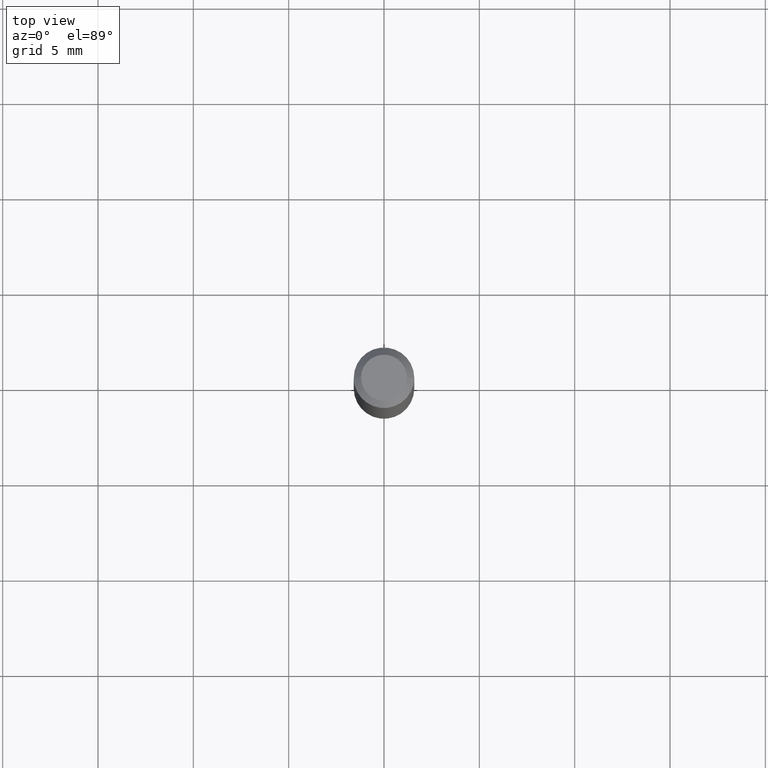
[diagram: clean part render]
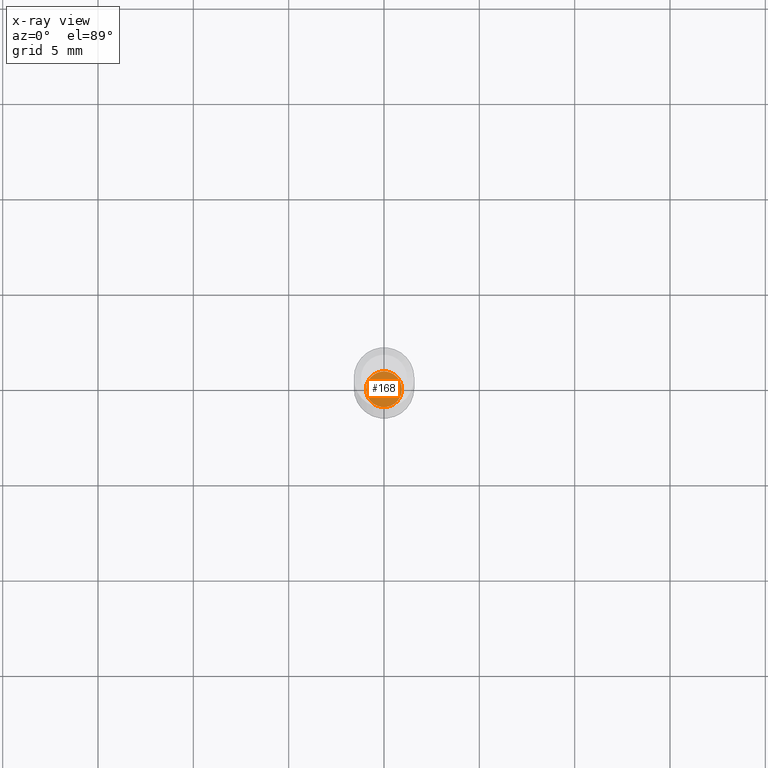
[diagram: x-ray — body ghosted, one internal face saturated and labeled with its STEP entity id]
A machine part, top view, then the same camera in x-ray: the body is ghosted and one INTERNAL B-rep face — a face not visible from any outside direction — is saturated and labeled: STEP entity #168.
In plain terms, the highlighted planar face has unit normal (-0, 0, 1).
Its self-contained STEP definition (entity closure, byte-faithful):
#59 = CARTESIAN_POINT ( 'NONE',  ( -0.03699999999999997041, -4.578880318239517960E-15, -1.387500000000000178 ) ) ;
#80 = PLANE ( 'NONE',  #367 ) ;
#84 = CARTESIAN_POINT ( 'NONE',  ( 3.393087968581877252E-29, -4.844430357644865674E-15, -1.387500000000000178 ) ) ;
#105 = DIRECTION ( 'NONE',  ( 1.000000000000000000, -6.982962677686265922E-15, 4.876176775795935793E-29 ) ) ;
#146 = DIRECTION ( 'NONE',  ( 1.000000000000000000, -6.982962677686259611E-15, 0.000000000000000000 ) ) ;
#164 = AXIS2_PLACEMENT_3D ( 'NONE', #420, #462, #146 ) ;
#168 = ADVANCED_FACE ( 'NONE', ( #243 ), #80, .F. ) ;
#180 = ORIENTED_EDGE ( 'NONE', *, *, #514, .F. ) ;
#197 = DIRECTION ( 'NONE',  ( -2.445468806185136597E-29, 3.491481338843145583E-15, 1.000000000000000000 ) ) ;
#221 = AXIS2_PLACEMENT_3D ( 'NONE', #473, #197, #517 ) ;
#236 = VERTEX_POINT ( 'NONE', #385 ) ;
#243 = FACE_OUTER_BOUND ( 'NONE', #414, .T. ) ;
#251 = EDGE_CURVE ( 'NONE', #236, #370, #301, .T. ) ;
#300 = DIRECTION ( 'NONE',  ( -2.438088387897960049E-29, 3.491481338843145188E-15, 1.000000000000000000 ) ) ;
#301 = CIRCLE ( 'NONE', #164, 0.03699999999999997041 ) ;
#367 = AXIS2_PLACEMENT_3D ( 'NONE', #84, #300, #105 ) ;
#370 = VERTEX_POINT ( 'NONE', #59 ) ;
#385 = CARTESIAN_POINT ( 'NONE',  ( 0.03699999999999997041, -5.102799976719256880E-15, -1.387500000000000178 ) ) ;
#405 = CIRCLE ( 'NONE', #221, 0.03699999999999997041 ) ;
#414 = EDGE_LOOP ( 'NONE', ( #518, #180 ) ) ;
#420 = CARTESIAN_POINT ( 'NONE',  ( 3.393087968581877252E-29, -4.844430357644865674E-15, -1.387500000000000178 ) ) ;
#462 = DIRECTION ( 'NONE',  ( -2.445468806185136597E-29, 3.491481338843145583E-15, 1.000000000000000000 ) ) ;
#473 = CARTESIAN_POINT ( 'NONE',  ( 3.393087968581877252E-29, -4.844430357644865674E-15, -1.387500000000000178 ) ) ;
#514 = EDGE_CURVE ( 'NONE', #370, #236, #405, .T. ) ;
#517 = DIRECTION ( 'NONE',  ( 1.000000000000000000, -6.982962677686259611E-15, 0.000000000000000000 ) ) ;
#518 = ORIENTED_EDGE ( 'NONE', *, *, #251, .F. ) ;